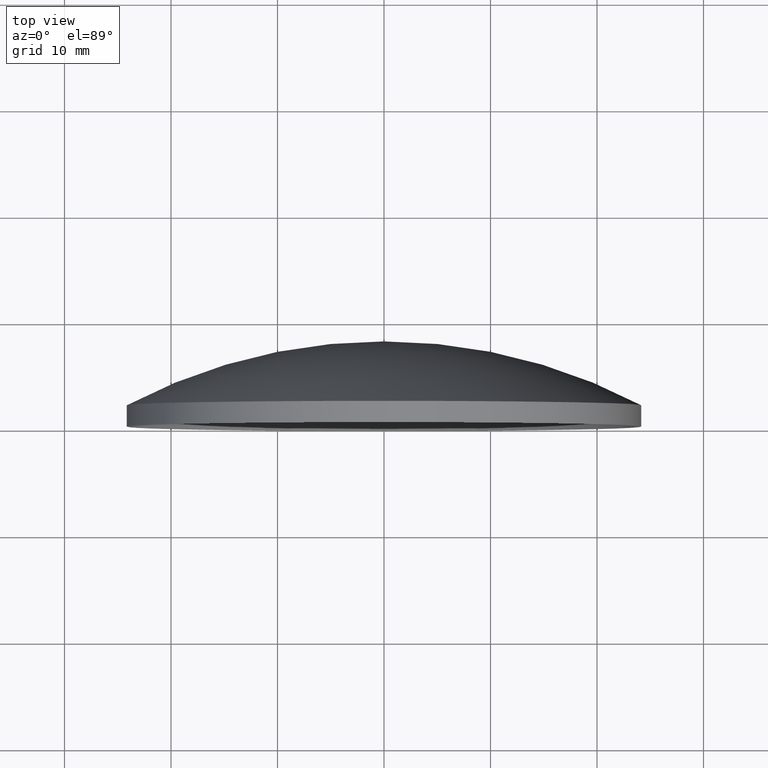
[diagram: clean part render]
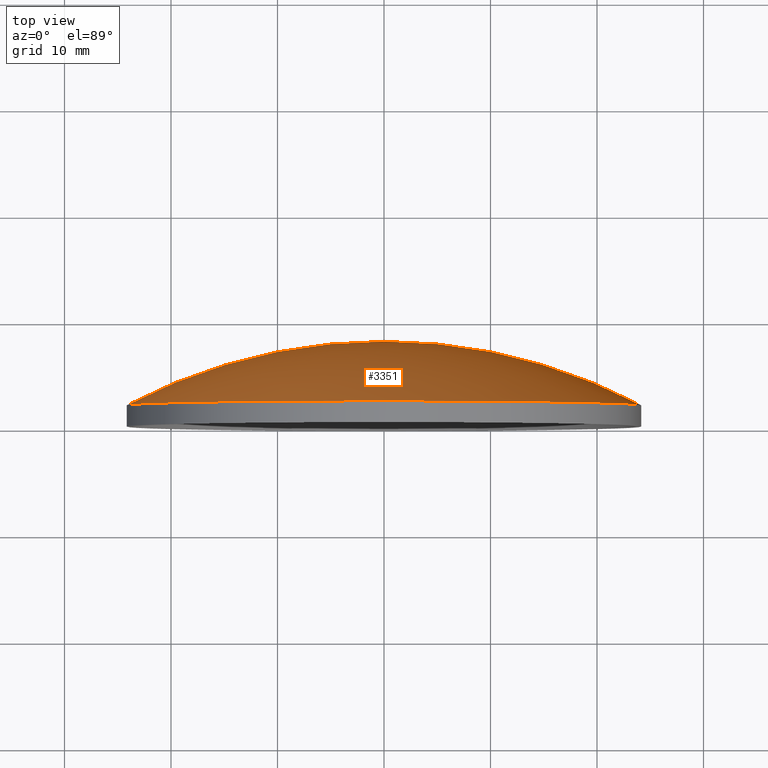
[diagram: same view with one face highlighted and labeled with its STEP entity id]
A machine part, top view. The second image highlights one B-rep face of the part: STEP entity #3351.
In plain terms, the highlighted spherical surface has radius 51.6019 mm.
Its self-contained STEP definition (entity closure, byte-faithful):
#35 = AXIS2_PLACEMENT_3D ( 'NONE', #4941, #8598, #7816 ) ;
#369 = VERTEX_POINT ( 'NONE', #478 ) ;
#478 = CARTESIAN_POINT ( 'NONE',  ( 24.15000000000000600, 1.999999999999988000, 0.0000000000000000000 ) ) ;
#1015 = ORIENTED_EDGE ( 'NONE', *, *, #3237, .F. ) ;
#1146 = CARTESIAN_POINT ( 'NONE',  ( 1.463868500272714700E-014, -43.60187499999997800, 0.0000000000000000000 ) ) ;
#2403 = SPHERICAL_SURFACE ( 'NONE', #35, 51.60187499999996400 ) ;
#2417 = FACE_OUTER_BOUND ( 'NONE', #4785, .T. ) ;
#2990 = CIRCLE ( 'NONE', #9646, 24.15000000000003400 ) ;
#3237 = EDGE_CURVE ( 'NONE', #369, #10146, #2990, .T. ) ;
#3351 = ADVANCED_FACE ( 'NONE', ( #2417 ), #2403, .T. ) ;
#3432 = ORIENTED_EDGE ( 'NONE', *, *, #6913, .T. ) ;
#3928 = CARTESIAN_POINT ( 'NONE',  ( -2.927737000545303800E-014, 2.000000000000164800, 0.0000000000000000000 ) ) ;
#3980 = DIRECTION ( 'NONE',  ( 1.000000000000000000, 0.0000000000000000000, -1.224646799147353200E-016 ) ) ;
#4601 = CARTESIAN_POINT ( 'NONE',  ( -24.15000000000005900, 2.000000000000341900, 2.957522019940862300E-015 ) ) ;
#4686 = DIRECTION ( 'NONE',  ( 1.000000000000000000, -7.326782383007622800E-015, 0.0000000000000000000 ) ) ;
#4785 = EDGE_LOOP ( 'NONE', ( #6629, #3432, #1015 ) ) ;
#4868 = DIRECTION ( 'NONE',  ( 1.224646799147353200E-016, -8.963609366158087900E-031, 1.000000000000000000 ) ) ;
#4941 = CARTESIAN_POINT ( 'NONE',  ( 1.463868500272714700E-014, -43.60187499999997800, 0.0000000000000000000 ) ) ;
#4956 = VERTEX_POINT ( 'NONE', #7592 ) ;
#5218 = EDGE_CURVE ( 'NONE', #4956, #369, #9948, .T. ) ;
#6492 = AXIS2_PLACEMENT_3D ( 'NONE', #1146, #4868, #3980 ) ;
#6574 = DIRECTION ( 'NONE',  ( -1.000000000000000000, 0.0000000000000000000, 0.0000000000000000000 ) ) ;
#6629 = ORIENTED_EDGE ( 'NONE', *, *, #5218, .F. ) ;
#6913 = EDGE_CURVE ( 'NONE', #4956, #10146, #8502, .T. ) ;
#7544 = DIRECTION ( 'NONE',  ( 0.0000000000000000000, 0.0000000000000000000, -1.000000000000000000 ) ) ;
#7579 = DIRECTION ( 'NONE',  ( -7.319342501363578300E-015, -1.000000000000000000, -0.0000000000000000000 ) ) ;
#7592 = CARTESIAN_POINT ( 'NONE',  ( 3.954901853927152000E-013, 7.999999999999986700, 0.0000000000000000000 ) ) ;
#7816 = DIRECTION ( 'NONE',  ( 1.000000000000000000, -7.261369297355776100E-015, 0.0000000000000000000 ) ) ;
#8114 = AXIS2_PLACEMENT_3D ( 'NONE', #10315, #7544, #6574 ) ;
#8502 = CIRCLE ( 'NONE', #6492, 51.60187499999996400 ) ;
#8598 = DIRECTION ( 'NONE',  ( -0.0000000000000000000, 0.0000000000000000000, 1.000000000000000000 ) ) ;
#9646 = AXIS2_PLACEMENT_3D ( 'NONE', #3928, #7579, #4686 ) ;
#9948 = CIRCLE ( 'NONE', #8114, 51.60187499999996400 ) ;
#10146 = VERTEX_POINT ( 'NONE', #4601 ) ;
#10315 = CARTESIAN_POINT ( 'NONE',  ( 1.463868500272714700E-014, -43.60187499999997800, 0.0000000000000000000 ) ) ;